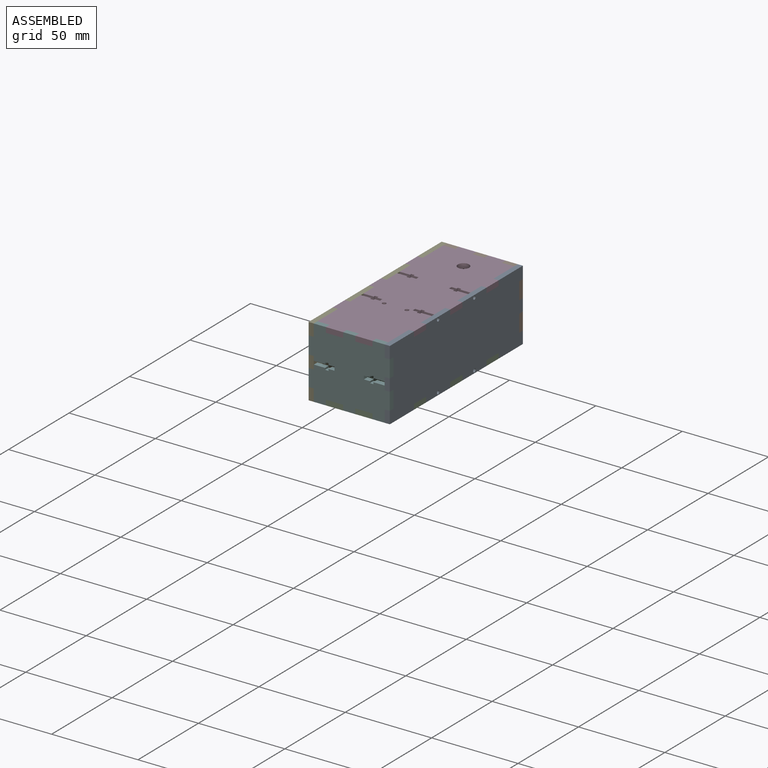
[diagram: assembled view]
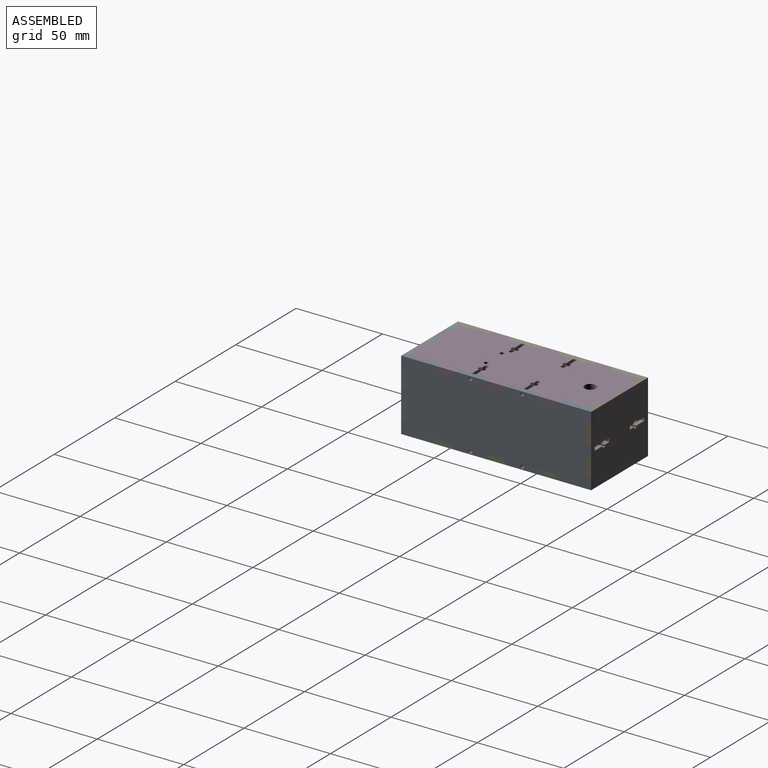
[diagram: assembled view, second angle]
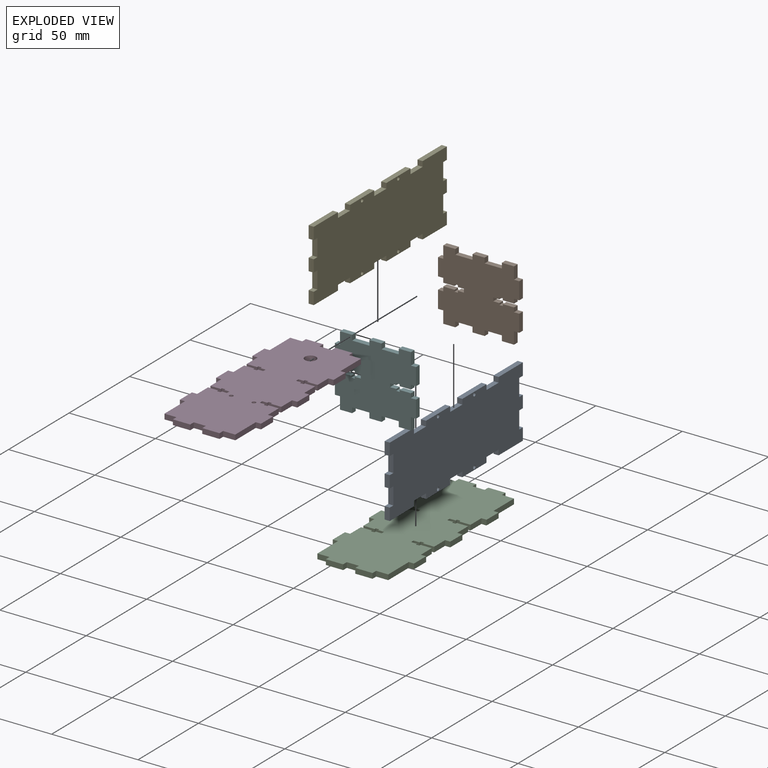
[diagram: exploded view]
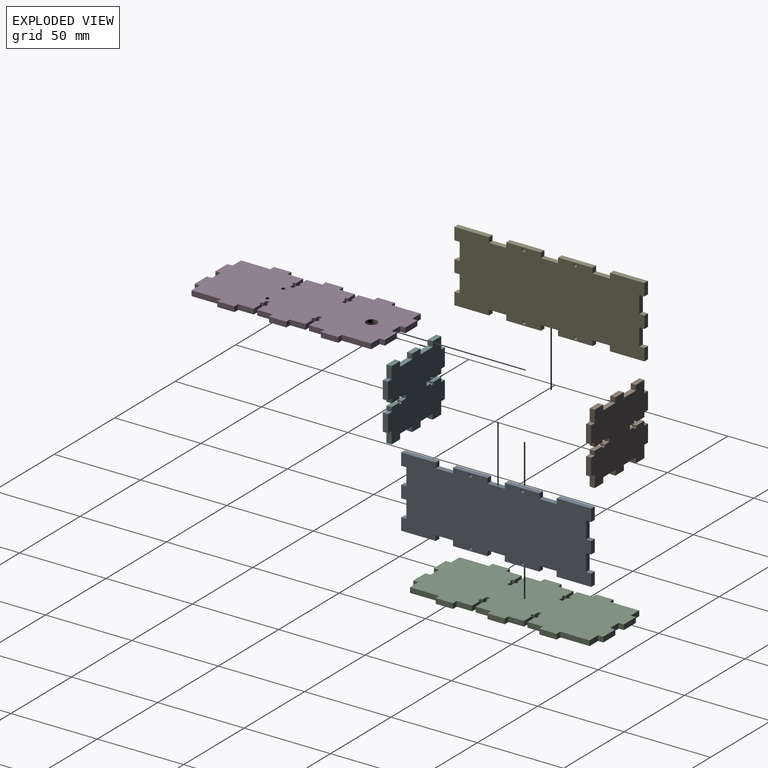
[diagram: exploded view, second angle]
ASSEMBLY  parts=6 mates=5
PART A: 50 faces, bbox 3x110x41 mm
  f0: plane 10x3mm, normal (0,0,-1), area 30mm2, adj f1,f43,f48,f49
  f1: plane 3x3mm, normal (0,-1,0), area 9mm2, adj f0,f2,f48,f49
  f2: plane 20x3mm, normal (0,0,-1), area 60mm2, adj f1,f3,f48,f49
  f3: plane 3x3mm, normal (0,1,0), area 9mm2, adj f2,f4,f48,f49
  f4: plane 10x3mm, normal (0,0,-1), area 30mm2, adj f3,f5,f48,f49
  f5: plane 3x3mm, normal (0,-1,0), area 9mm2, adj f4,f6,f48,f49
  f6: plane 20x3mm, normal (0,0,-1), area 60mm2, adj f5,f7,f48,f49
  f7: plane 3x3mm, normal (0,1,0), area 9mm2, adj f6,f8,f48,f49
  f8: plane 10x3mm, normal (0,0,-1), area 30mm2, adj f7,f9,f48,f49
  f9: plane 3x3mm, normal (0,-1,0), area 9mm2, adj f8,f10,f48,f49
  f10: plane 20x3mm, normal (0,0,-1), area 60mm2, adj f9,f11,f48,f49
  f11: plane 7x3mm, normal (0,1,0), area 21mm2, adj f10,f12,f48,f49
  f12: plane 3x3mm, normal (0,0,1), area 9mm2, adj f11,f13,f48,f49
  f13: plane 10x3mm, normal (0,1,0), area 30mm2, adj f12,f14,f48,f49
  f14: plane 3x3mm, normal (0,0,-1), area 9mm2, adj f13,f15,f48,f49
  f15: plane 7x3mm, normal (0,1,0), area 21mm2, adj f14,f16,f48,f49
  f16: plane 3x3mm, normal (0,0,1), area 9mm2, adj f15,f17,f48,f49
  f17: plane 10x3mm, normal (0,1,0), area 30mm2, adj f16,f18,f48,f49
  f18: plane 3x3mm, normal (0,0,-1), area 9mm2, adj f17,f19,f48,f49
  f19: plane 7x3mm, normal (0,1,0), area 21mm2, adj f18,f20,f48,f49
  f20: plane 20x3mm, normal (0,0,1), area 60mm2, adj f19,f21,f48,f49
  f21: plane 3x3mm, normal (0,-1,0), area 9mm2, adj f20,f22,f48,f49
  f22: plane 10x3mm, normal (0,0,1), area 30mm2, adj f21,f23,f48,f49
  f23: plane 3x3mm, normal (0,1,0), area 9mm2, adj f22,f24,f48,f49
  f24: plane 20x3mm, normal (0,0,1), area 60mm2, adj f23,f25,f48,f49
  f25: plane 3x3mm, normal (0,-1,0), area 9mm2, adj f24,f26,f48,f49
  f26: plane 10x3mm, normal (0,0,1), area 30mm2, adj f25,f27,f48,f49
  f27: plane 3x3mm, normal (0,1,0), area 9mm2, adj f26,f28,f48,f49
  f28: plane 20x3mm, normal (0,0,1), area 60mm2, adj f27,f29,f48,f49
  f29: plane 3x3mm, normal (0,-1,0), area 9mm2, adj f28,f30,f48,f49
  f30: plane 10x3mm, normal (0,0,1), area 30mm2, adj f29,f31,f48,f49
  f31: plane 3x3mm, normal (0,1,0), area 9mm2, adj f30,f32,f48,f49
  f32: plane 20x3mm, normal (0,0,1), area 60mm2, adj f31,f33,f48,f49
  f33: plane 7x3mm, normal (0,-1,0), area 21mm2, adj f32,f34,f48,f49
  f34: plane 3x3mm, normal (0,0,-1), area 9mm2, adj f33,f35,f48,f49
  f35: plane 10x3mm, normal (0,-1,0), area 30mm2, adj f34,f36,f48,f49
  f36: plane 3x3mm, normal (0,0,1), area 9mm2, adj f35,f37,f48,f49
  f37: plane 7x3mm, normal (0,-1,0), area 21mm2, adj f36,f38,f48,f49
  f38: plane 3x3mm, normal (0,0,-1), area 9mm2, adj f37,f39,f48,f49
  f39: plane 10x3mm, normal (0,-1,0), area 30mm2, adj f38,f40,f48,f49
  f40: plane 3x3mm, normal (0,0,1), area 9mm2, adj f39,f41,f48,f49
  f41: plane 7x3mm, normal (0,-1,0), area 21mm2, adj f40,f42,f48,f49
  f42: plane 20x3mm, normal (0,0,-1), area 60mm2, adj f41,f43,f48,f49
  f43: plane 3x3mm, normal (0,1,0), area 9mm2, adj f0,f42,f48,f49
  f44: cylinder r=1mm len=3mm, axis (-1,0,0), area 18.8mm2, adj f48,f49
  f45: cylinder r=1mm len=3mm, axis (-1,0,0), area 18.8mm2, adj f48,f49
  f46: cylinder r=1mm len=3mm, axis (-1,0,0), area 18.8mm2, adj f48,f49
  f47: cylinder r=1mm len=3mm, axis (-1,0,0), area 18.8mm2, adj f48,f49
  f48: plane 110x41mm, normal (1,0,0), area 4197.4mm2, adj f0,f1,f2,f3,f4,f5,f6,f7
  f49: plane 110x41mm, normal (-1,0,0), area 4197.4mm2, adj f0,f1,f2,f3,f4,f5,f6,f7
PART B: 62 faces, bbox 41x3x47 mm
  f0: plane 10x3mm, normal (0,0,-1), area 30mm2, adj f1,f59,f60,f61
  f1: plane 3x3mm, normal (1,0,0), area 9mm2, adj f0,f2,f60,f61
  f2: plane 3x2.5mm, normal (0,0,-1), area 7.5mm2, adj f1,f3,f60,f61
  f3: plane 6.5x3mm, normal (1,0,0), area 19.5mm2, adj f2,f4,f60,f61
  f4: plane 3x1mm, normal (0,0,1), area 3mm2, adj f3,f5,f60,f61
  f5: plane 3x2mm, normal (1,0,0), area 6mm2, adj f4,f6,f60,f61
  f6: plane 3x1mm, normal (0,0,-1), area 3mm2, adj f5,f7,f60,f61
  f7: plane 3.5x3mm, normal (1,0,0), area 10.5mm2, adj f6,f8,f60,f61
  f8: plane 3x2mm, normal (0,0,-1), area 6mm2, adj f7,f9,f60,f61
  f9: plane 3.5x3mm, normal (-1,0,0), area 10.5mm2, adj f8,f10,f60,f61
  f10: plane 3x1mm, normal (0,0,-1), area 3mm2, adj f9,f11,f60,f61
  f11: plane 3x2mm, normal (-1,0,0), area 6mm2, adj f10,f12,f60,f61
  f12: plane 3x1mm, normal (0,0,1), area 3mm2, adj f11,f13,f60,f61
  f13: plane 6.5x3mm, normal (-1,0,0), area 19.5mm2, adj f12,f14,f60,f61
  f14: plane 3x2.5mm, normal (0,0,-1), area 7.5mm2, adj f13,f15,f60,f61
  f15: plane 3x3mm, normal (-1,0,0), area 9mm2, adj f14,f16,f60,f61
  f16: plane 10x3mm, normal (0,0,-1), area 30mm2, adj f15,f17,f60,f61
  f17: plane 3x3mm, normal (1,0,0), area 9mm2, adj f16,f18,f60,f61
  f18: plane 7x3mm, normal (0,0,-1), area 21mm2, adj f17,f19,f60,f61
  f19: plane 7x3mm, normal (1,0,0), area 21mm2, adj f18,f20,f60,f61
  f20: plane 3x3mm, normal (0,0,1), area 9mm2, adj f19,f21,f60,f61
  f21: plane 10x3mm, normal (1,0,0), area 30mm2, adj f20,f22,f60,f61
  f22: plane 3x3mm, normal (0,0,-1), area 9mm2, adj f21,f23,f60,f61
  f23: plane 7x3mm, normal (1,0,0), area 21mm2, adj f22,f24,f60,f61
  f24: plane 3x3mm, normal (0,0,1), area 9mm2, adj f23,f25,f60,f61
  f25: plane 10x3mm, normal (1,0,0), area 30mm2, adj f24,f26,f60,f61
  f26: plane 3x3mm, normal (0,0,-1), area 9mm2, adj f25,f27,f60,f61
  f27: plane 7x3mm, normal (1,0,0), area 21mm2, adj f26,f28,f60,f61
  f28: plane 7x3mm, normal (0,0,1), area 21mm2, adj f27,f29,f60,f61
  f29: plane 3x3mm, normal (1,0,0), area 9mm2, adj f28,f30,f60,f61
  f30: plane 10x3mm, normal (0,0,1), area 30mm2, adj f29,f31,f60,f61
  f31: plane 3x3mm, normal (-1,0,0), area 9mm2, adj f30,f32,f60,f61
  f32: plane 3x2.5mm, normal (0,0,1), area 7.5mm2, adj f31,f33,f60,f61
  f33: plane 6.5x3mm, normal (-1,0,0), area 19.5mm2, adj f32,f34,f60,f61
  f34: plane 3x1mm, normal (0,0,-1), area 3mm2, adj f33,f35,f60,f61
  f35: plane 3x2mm, normal (-1,0,0), area 6mm2, adj f34,f36,f60,f61
  f36: plane 3x1mm, normal (0,0,1), area 3mm2, adj f35,f37,f60,f61
  f37: plane 3.5x3mm, normal (-1,0,0), area 10.5mm2, adj f36,f38,f60,f61
  f38: plane 3x2mm, normal (0,0,1), area 6mm2, adj f37,f39,f60,f61
  f39: plane 3.5x3mm, normal (1,0,0), area 10.5mm2, adj f38,f40,f60,f61
  f40: plane 3x1mm, normal (0,0,1), area 3mm2, adj f39,f41,f60,f61
  f41: plane 3x2mm, normal (1,0,0), area 6mm2, adj f40,f42,f60,f61
  f42: plane 3x1mm, normal (0,0,-1), area 3mm2, adj f41,f43,f60,f61
  f43: plane 6.5x3mm, normal (1,0,0), area 19.5mm2, adj f42,f44,f60,f61
  f44: plane 3x2.5mm, normal (0,0,1), area 7.5mm2, adj f43,f45,f60,f61
  f45: plane 3x3mm, normal (1,0,0), area 9mm2, adj f44,f46,f60,f61
  f46: plane 10x3mm, normal (0,0,1), area 30mm2, adj f45,f47,f60,f61
  f47: plane 3x3mm, normal (-1,0,0), area 9mm2, adj f46,f48,f60,f61
  f48: plane 7x3mm, normal (0,0,1), area 21mm2, adj f47,f49,f60,f61
  f49: plane 7x3mm, normal (-1,0,0), area 21mm2, adj f48,f50,f60,f61
  f50: plane 3x3mm, normal (0,0,-1), area 9mm2, adj f49,f51,f60,f61
  f51: plane 10x3mm, normal (-1,0,0), area 30mm2, adj f50,f52,f60,f61
  f52: plane 3x3mm, normal (0,0,1), area 9mm2, adj f51,f53,f60,f61
  f53: plane 7x3mm, normal (-1,0,0), area 21mm2, adj f52,f54,f60,f61
  f54: plane 3x3mm, normal (0,0,-1), area 9mm2, adj f53,f55,f60,f61
  f55: plane 10x3mm, normal (-1,0,0), area 30mm2, adj f54,f56,f60,f61
  f56: plane 3x3mm, normal (0,0,1), area 9mm2, adj f55,f57,f60,f61
  f57: plane 7x3mm, normal (-1,0,0), area 21mm2, adj f56,f58,f60,f61
  f58: plane 7x3mm, normal (0,0,-1), area 21mm2, adj f57,f59,f60,f61
  f59: plane 3x3mm, normal (-1,0,0), area 9mm2, adj f0,f58,f60,f61
  f60: plane 47x41mm, normal (0,-1,0), area 1625mm2, adj f0,f1,f2,f3,f4,f5,f6,f7
  f61: plane 47x41mm, normal (0,1,0), area 1625mm2, adj f0,f1,f2,f3,f4,f5,f6,f7
PART C: 94 faces, bbox 110x47x3 mm
  f0: plane 3x1mm, normal (0,-1,0), area 3mm2, adj f1,f91,f92,f93
  f1: plane 3.5x3mm, normal (1,0,0), area 10.5mm2, adj f0,f2,f92,f93
  f2: plane 3x2mm, normal (0,-1,0), area 6mm2, adj f1,f3,f92,f93
  f3: plane 3.5x3mm, normal (-1,0,0), area 10.5mm2, adj f2,f4,f92,f93
  f4: plane 3x1mm, normal (0,-1,0), area 3mm2, adj f3,f5,f92,f93
  f5: plane 3x2mm, normal (-1,0,0), area 6mm2, adj f4,f6,f92,f93
  f6: plane 3x1mm, normal (0,1,0), area 3mm2, adj f5,f7,f92,f93
  f7: plane 6.5x3mm, normal (-1,0,0), area 19.5mm2, adj f6,f8,f92,f93
  f8: plane 9x3mm, normal (0,-1,0), area 27mm2, adj f7,f9,f92,f93
  f9: plane 3x3mm, normal (-1,0,0), area 9mm2, adj f8,f10,f92,f93
  f10: plane 10x3mm, normal (0,-1,0), area 30mm2, adj f9,f11,f92,f93
  f11: plane 3x3mm, normal (1,0,0), area 9mm2, adj f10,f12,f92,f93
  f12: plane 9x3mm, normal (0,-1,0), area 27mm2, adj f11,f13,f92,f93
  f13: plane 6.5x3mm, normal (1,0,0), area 19.5mm2, adj f12,f14,f92,f93
  f14: plane 3x1mm, normal (0,1,0), area 3mm2, adj f13,f15,f92,f93
  f15: plane 3x2mm, normal (1,0,0), area 6mm2, adj f14,f16,f92,f93
  f16: plane 3x1mm, normal (0,-1,0), area 3mm2, adj f15,f17,f92,f93
  f17: plane 3.5x3mm, normal (1,0,0), area 10.5mm2, adj f16,f18,f92,f93
  f18: plane 3x2mm, normal (0,-1,0), area 6mm2, adj f17,f19,f92,f93
  f19: plane 3.5x3mm, normal (-1,0,0), area 10.5mm2, adj f18,f20,f92,f93
  f20: plane 3x1mm, normal (0,-1,0), area 3mm2, adj f19,f21,f92,f93
  f21: plane 3x2mm, normal (-1,0,0), area 6mm2, adj f20,f22,f92,f93
  f22: plane 3x1mm, normal (0,1,0), area 3mm2, adj f21,f23,f92,f93
  f23: plane 6.5x3mm, normal (-1,0,0), area 19.5mm2, adj f22,f24,f92,f93
  f24: plane 9x3mm, normal (0,-1,0), area 27mm2, adj f23,f25,f92,f93
  f25: plane 3x3mm, normal (-1,0,0), area 9mm2, adj f24,f26,f92,f93
  f26: plane 10x3mm, normal (0,-1,0), area 30mm2, adj f25,f27,f92,f93
  f27: plane 3x3mm, normal (1,0,0), area 9mm2, adj f26,f28,f92,f93
  f28: plane 17x3mm, normal (0,-1,0), area 51mm2, adj f27,f29,f92,f93
  f29: plane 7x3mm, normal (1,0,0), area 21mm2, adj f28,f30,f92,f93
  f30: plane 3x3mm, normal (0,-1,0), area 9mm2, adj f29,f31,f92,f93
  f31: plane 10x3mm, normal (1,0,0), area 30mm2, adj f30,f32,f92,f93
  f32: plane 3x3mm, normal (0,1,0), area 9mm2, adj f31,f33,f92,f93
  f33: plane 7x3mm, normal (1,0,0), area 21mm2, adj f32,f34,f92,f93
  f34: plane 3x3mm, normal (0,-1,0), area 9mm2, adj f33,f35,f92,f93
  f35: plane 10x3mm, normal (1,0,0), area 30mm2, adj f34,f36,f92,f93
  f36: plane 3x3mm, normal (0,1,0), area 9mm2, adj f35,f37,f92,f93
  f37: plane 7x3mm, normal (1,0,0), area 21mm2, adj f36,f38,f92,f93
  f38: plane 17x3mm, normal (0,1,0), area 51mm2, adj f37,f39,f92,f93
  f39: plane 3x3mm, normal (1,0,0), area 9mm2, adj f38,f40,f92,f93
  f40: plane 10x3mm, normal (0,1,0), area 30mm2, adj f39,f41,f92,f93
  f41: plane 3x3mm, normal (-1,0,0), area 9mm2, adj f40,f42,f92,f93
  f42: plane 9x3mm, normal (0,1,0), area 27mm2, adj f41,f43,f92,f93
  f43: plane 6.5x3mm, normal (-1,0,0), area 19.5mm2, adj f42,f44,f92,f93
  f44: plane 3x1mm, normal (0,-1,0), area 3mm2, adj f43,f45,f92,f93
  f45: plane 3x2mm, normal (-1,0,0), area 6mm2, adj f44,f46,f92,f93
  f46: plane 3x1mm, normal (0,1,0), area 3mm2, adj f45,f47,f92,f93
  f47: plane 3.5x3mm, normal (-1,0,0), area 10.5mm2, adj f46,f48,f92,f93
  f48: plane 3x2mm, normal (0,1,0), area 6mm2, adj f47,f49,f92,f93
  f49: plane 3.5x3mm, normal (1,0,0), area 10.5mm2, adj f48,f50,f92,f93
  f50: plane 3x1mm, normal (0,1,0), area 3mm2, adj f49,f51,f92,f93
  f51: plane 3x2mm, normal (1,0,0), area 6mm2, adj f50,f52,f92,f93
  f52: plane 3x1mm, normal (0,-1,0), area 3mm2, adj f51,f53,f92,f93
  f53: plane 6.5x3mm, normal (1,0,0), area 19.5mm2, adj f52,f54,f92,f93
  f54: plane 9x3mm, normal (0,1,0), area 27mm2, adj f53,f55,f92,f93
  f55: plane 3x3mm, normal (1,0,0), area 9mm2, adj f54,f56,f92,f93
  f56: plane 10x3mm, normal (0,1,0), area 30mm2, adj f55,f57,f92,f93
  f57: plane 3x3mm, normal (-1,0,0), area 9mm2, adj f56,f58,f92,f93
  f58: plane 9x3mm, normal (0,1,0), area 27mm2, adj f57,f59,f92,f93
  f59: plane 6.5x3mm, normal (-1,0,0), area 19.5mm2, adj f58,f60,f92,f93
  f60: plane 3x1mm, normal (0,-1,0), area 3mm2, adj f59,f61,f92,f93
  f61: plane 3x2mm, normal (-1,0,0), area 6mm2, adj f60,f62,f92,f93
  f62: plane 3x1mm, normal (0,1,0), area 3mm2, adj f61,f63,f92,f93
  f63: plane 3.5x3mm, normal (-1,0,0), area 10.5mm2, adj f62,f64,f92,f93
  f64: plane 3x2mm, normal (0,1,0), area 6mm2, adj f63,f65,f92,f93
  f65: plane 3.5x3mm, normal (1,0,0), area 10.5mm2, adj f64,f66,f92,f93
  f66: plane 3x1mm, normal (0,1,0), area 3mm2, adj f65,f67,f92,f93
  f67: plane 3x2mm, normal (1,0,0), area 6mm2, adj f66,f68,f92,f93
  f68: plane 3x1mm, normal (0,-1,0), area 3mm2, adj f67,f69,f92,f93
  f69: plane 6.5x3mm, normal (1,0,0), area 19.5mm2, adj f68,f70,f92,f93
  f70: plane 9x3mm, normal (0,1,0), area 27mm2, adj f69,f71,f92,f93
  f71: plane 3x3mm, normal (1,0,0), area 9mm2, adj f70,f72,f92,f93
  f72: plane 10x3mm, normal (0,1,0), area 30mm2, adj f71,f73,f92,f93
  f73: plane 3x3mm, normal (-1,0,0), area 9mm2, adj f72,f74,f92,f93
  f74: plane 17x3mm, normal (0,1,0), area 51mm2, adj f73,f75,f92,f93
  f75: plane 7x3mm, normal (-1,0,0), area 21mm2, adj f74,f76,f92,f93
  f76: plane 3x3mm, normal (0,1,0), area 9mm2, adj f75,f77,f92,f93
  f77: plane 10x3mm, normal (-1,0,0), area 30mm2, adj f76,f78,f92,f93
  f78: plane 3x3mm, normal (0,-1,0), area 9mm2, adj f77,f79,f92,f93
  f79: plane 7x3mm, normal (-1,0,0), area 21mm2, adj f78,f80,f92,f93
  f80: plane 3x3mm, normal (0,1,0), area 9mm2, adj f79,f81,f92,f93
  f81: plane 10x3mm, normal (-1,0,0), area 30mm2, adj f80,f82,f92,f93
  f82: plane 3x3mm, normal (0,-1,0), area 9mm2, adj f81,f83,f92,f93
  f83: plane 7x3mm, normal (-1,0,0), area 21mm2, adj f82,f84,f92,f93
  f84: plane 17x3mm, normal (0,-1,0), area 51mm2, adj f83,f85,f92,f93
  f85: plane 3x3mm, normal (-1,0,0), area 9mm2, adj f84,f86,f92,f93
  f86: plane 10x3mm, normal (0,-1,0), area 30mm2, adj f85,f87,f92,f93
  f87: plane 3x3mm, normal (1,0,0), area 9mm2, adj f86,f88,f92,f93
  f88: plane 9x3mm, normal (0,-1,0), area 27mm2, adj f87,f89,f92,f93
  f89: plane 6.5x3mm, normal (1,0,0), area 19.5mm2, adj f88,f90,f92,f93
  f90: plane 3x1mm, normal (0,1,0), area 3mm2, adj f89,f91,f92,f93
  f91: plane 3x2mm, normal (1,0,0), area 6mm2, adj f0,f90,f92,f93
  f92: plane 110x47mm, normal (0,0,1), area 4452mm2, adj f0,f1,f2,f3,f4,f5,f6,f7
  f93: plane 110x47mm, normal (0,0,-1), area 4452mm2, adj f0,f1,f2,f3,f4,f5,f6,f7
PART D: 97 faces, bbox 110x47x3 mm
  f0: plane 7x3mm, normal (-1,0,0), area 21mm2, adj f1,f94,f95,f96
  f1: plane 3x3mm, normal (0,1,0), area 9mm2, adj f0,f2,f95,f96
  f2: plane 10x3mm, normal (-1,0,0), area 30mm2, adj f1,f3,f95,f96
  f3: plane 3x3mm, normal (0,-1,0), area 9mm2, adj f2,f4,f95,f96
  f4: plane 7x3mm, normal (-1,0,0), area 21mm2, adj f3,f5,f95,f96
  f5: plane 17x3mm, normal (0,-1,0), area 51mm2, adj f4,f6,f95,f96
  f6: plane 3x3mm, normal (-1,0,0), area 9mm2, adj f5,f7,f95,f96
  f7: plane 10x3mm, normal (0,-1,0), area 30mm2, adj f6,f8,f95,f96
  f8: plane 3x3mm, normal (1,0,0), area 9mm2, adj f7,f9,f95,f96
  f9: plane 9x3mm, normal (0,-1,0), area 27mm2, adj f8,f10,f95,f96
  f10: plane 6x3mm, normal (1,0,0), area 18mm2, adj f9,f11,f95,f96
  f11: plane 3x1mm, normal (0,1,0), area 3mm2, adj f10,f12,f95,f96
  f12: plane 3x2mm, normal (1,0,0), area 6mm2, adj f11,f13,f95,f96
  f13: plane 3x1mm, normal (0,-1,0), area 3mm2, adj f12,f14,f95,f96
  f14: plane 3x3mm, normal (1,0,0), area 9mm2, adj f13,f15,f95,f96
  f15: plane 3x2mm, normal (0,-1,0), area 6mm2, adj f14,f16,f95,f96
  f16: plane 3x3mm, normal (-1,0,0), area 9mm2, adj f15,f17,f95,f96
  f17: plane 3x1mm, normal (0,-1,0), area 3mm2, adj f16,f18,f95,f96
  f18: plane 3x2mm, normal (-1,0,0), area 6mm2, adj f17,f19,f95,f96
  f19: plane 3x1mm, normal (0,1,0), area 3mm2, adj f18,f20,f95,f96
  f20: plane 6x3mm, normal (-1,0,0), area 18mm2, adj f19,f21,f95,f96
  f21: plane 9x3mm, normal (0,-1,0), area 27mm2, adj f20,f22,f95,f96
  f22: plane 3x3mm, normal (-1,0,0), area 9mm2, adj f21,f23,f95,f96
  f23: plane 10x3mm, normal (0,-1,0), area 30mm2, adj f22,f24,f95,f96
  f24: plane 3x3mm, normal (1,0,0), area 9mm2, adj f23,f25,f95,f96
  f25: plane 9x3mm, normal (0,-1,0), area 27mm2, adj f24,f26,f95,f96
  f26: plane 6x3mm, normal (1,0,0), area 18mm2, adj f25,f27,f95,f96
  f27: plane 3x1mm, normal (0,1,0), area 3mm2, adj f26,f28,f95,f96
  f28: plane 3x2mm, normal (1,0,0), area 6mm2, adj f27,f29,f95,f96
  f29: plane 3x1mm, normal (0,-1,0), area 3mm2, adj f28,f30,f95,f96
  f30: plane 3x3mm, normal (1,0,0), area 9mm2, adj f29,f31,f95,f96
  f31: plane 3x2mm, normal (0,-1,0), area 6mm2, adj f30,f32,f95,f96
  f32: plane 3x3mm, normal (-1,0,0), area 9mm2, adj f31,f33,f95,f96
  f33: plane 3x1mm, normal (0,-1,0), area 3mm2, adj f32,f34,f95,f96
  f34: plane 3x2mm, normal (-1,0,0), area 6mm2, adj f33,f35,f95,f96
  f35: plane 3x1mm, normal (0,1,0), area 3mm2, adj f34,f36,f95,f96
  f36: plane 6x3mm, normal (-1,0,0), area 18mm2, adj f35,f37,f95,f96
  f37: plane 9x3mm, normal (0,-1,0), area 27mm2, adj f36,f38,f95,f96
  f38: plane 3x3mm, normal (-1,0,0), area 9mm2, adj f37,f39,f95,f96
  f39: plane 10x3mm, normal (0,-1,0), area 30mm2, adj f38,f40,f95,f96
  f40: plane 3x3mm, normal (1,0,0), area 9mm2, adj f39,f41,f95,f96
  f41: plane 17x3mm, normal (0,-1,0), area 51mm2, adj f40,f42,f95,f96
  f42: plane 7x3mm, normal (1,0,0), area 21mm2, adj f41,f43,f95,f96
  f43: plane 3x3mm, normal (0,-1,0), area 9mm2, adj f42,f44,f95,f96
  f44: plane 10x3mm, normal (1,0,0), area 30mm2, adj f43,f45,f95,f96
  f45: plane 3x3mm, normal (0,1,0), area 9mm2, adj f44,f46,f95,f96
  f46: plane 7x3mm, normal (1,0,0), area 21mm2, adj f45,f47,f95,f96
  f47: plane 3x3mm, normal (0,-1,0), area 9mm2, adj f46,f48,f95,f96
  f48: plane 10x3mm, normal (1,0,0), area 30mm2, adj f47,f49,f95,f96
  f49: plane 3x3mm, normal (0,1,0), area 9mm2, adj f48,f50,f95,f96
  f50: plane 7x3mm, normal (1,0,0), area 21mm2, adj f49,f51,f95,f96
  f51: plane 17x3mm, normal (0,1,0), area 51mm2, adj f50,f52,f95,f96
  f52: plane 3x3mm, normal (1,0,0), area 9mm2, adj f51,f53,f95,f96
  f53: plane 10x3mm, normal (0,1,0), area 30mm2, adj f52,f54,f95,f96
  f54: plane 3x3mm, normal (-1,0,0), area 9mm2, adj f53,f55,f95,f96
  f55: plane 9x3mm, normal (0,1,0), area 27mm2, adj f54,f56,f95,f96
  f56: plane 6x3mm, normal (-1,0,0), area 18mm2, adj f55,f57,f95,f96
  f57: plane 3x1mm, normal (0,-1,0), area 3mm2, adj f56,f58,f95,f96
  f58: plane 3x2mm, normal (-1,0,0), area 6mm2, adj f57,f59,f95,f96
  f59: plane 3x1mm, normal (0,1,0), area 3mm2, adj f58,f60,f95,f96
  f60: plane 3x3mm, normal (-1,0,0), area 9mm2, adj f59,f61,f95,f96
  f61: plane 3x2mm, normal (0,1,0), area 6mm2, adj f60,f62,f95,f96
  f62: plane 3x3mm, normal (1,0,0), area 9mm2, adj f61,f63,f95,f96
  f63: plane 3x1mm, normal (0,1,0), area 3mm2, adj f62,f64,f95,f96
  f64: plane 3x2mm, normal (1,0,0), area 6mm2, adj f63,f65,f95,f96
  f65: plane 3x1mm, normal (0,-1,0), area 3mm2, adj f64,f66,f95,f96
  f66: plane 6x3mm, normal (1,0,0), area 18mm2, adj f65,f67,f95,f96
  f67: plane 9x3mm, normal (0,1,0), area 27mm2, adj f66,f68,f95,f96
  f68: plane 3x3mm, normal (1,0,0), area 9mm2, adj f67,f69,f95,f96
  f69: plane 10x3mm, normal (0,1,0), area 30mm2, adj f68,f70,f95,f96
  f70: plane 3x3mm, normal (-1,0,0), area 9mm2, adj f69,f71,f95,f96
  f71: plane 9x3mm, normal (0,1,0), area 27mm2, adj f70,f72,f95,f96
  f72: plane 6x3mm, normal (-1,0,0), area 18mm2, adj f71,f73,f95,f96
  f73: plane 3x1mm, normal (0,-1,0), area 3mm2, adj f72,f74,f95,f96
  f74: plane 3x2mm, normal (-1,0,0), area 6mm2, adj f73,f75,f95,f96
  f75: plane 3x1mm, normal (0,1,0), area 3mm2, adj f74,f76,f95,f96
  f76: plane 3x3mm, normal (-1,0,0), area 9mm2, adj f75,f77,f95,f96
  f77: plane 3x2mm, normal (0,1,0), area 6mm2, adj f76,f78,f95,f96
  f78: plane 3x3mm, normal (1,0,0), area 9mm2, adj f77,f79,f95,f96
  f79: plane 3x1mm, normal (0,1,0), area 3mm2, adj f78,f80,f95,f96
  f80: plane 3x2mm, normal (1,0,0), area 6mm2, adj f79,f81,f95,f96
  f81: plane 3x1mm, normal (0,-1,0), area 3mm2, adj f80,f82,f95,f96
  f82: plane 6x3mm, normal (1,0,0), area 18mm2, adj f81,f83,f95,f96
  f83: plane 9x3mm, normal (0,1,0), area 27mm2, adj f82,f84,f95,f96
  f84: plane 3x3mm, normal (1,0,0), area 9mm2, adj f83,f85,f95,f96
  f85: plane 10x3mm, normal (0,1,0), area 30mm2, adj f84,f86,f95,f96
  f86: plane 3x3mm, normal (-1,0,0), area 9mm2, adj f85,f87,f95,f96
  f87: plane 17x3mm, normal (0,1,0), area 51mm2, adj f86,f88,f95,f96
  f88: plane 7x3mm, normal (-1,0,0), area 21mm2, adj f87,f89,f95,f96
  f89: plane 3x3mm, normal (0,1,0), area 9mm2, adj f88,f90,f95,f96
  f90: plane 10x3mm, normal (-1,0,0), area 30mm2, adj f89,f94,f95,f96
  f91: cylinder r=3.25mm len=6.5mm, axis (0,0,-1), area 61.3mm2, adj f95,f96
  f92: cylinder r=1.12mm len=3mm, axis (0,0,-1), area 21.2mm2, adj f95,f96
  f93: cylinder r=1.12mm len=3mm, axis (0,0,-1), area 21.2mm2, adj f95,f96
  f94: plane 3x3mm, normal (0,-1,0), area 9mm2, adj f0,f90,f95,f96
  f95: plane 110x47mm, normal (0,0,1), area 4418.9mm2, adj f0,f1,f2,f3,f4,f5,f6,f7
  f96: plane 110x47mm, normal (0,0,-1), area 4418.9mm2, adj f0,f1,f2,f3,f4,f5,f6,f7
PART E: same geometry as A
PART F: same geometry as B
PLACE A t=(-16.02,36.82,-6.71)mm
PLACE B rot(axis=(0,-1,0),90deg) t=(-16.02,36.82,34.29)mm
PLACE C rot(axis=(0,0,1),90deg) t=(-16.02,33.82,-6.71)mm
PLACE D rot(axis=(0,0,1),90deg) t=(-16.02,33.82,31.29)mm
PLACE E t=(-60.02,36.82,-6.71)mm fixed
PLACE F rot(axis=(0,1,0),90deg) t=(-57.02,-70.18,-6.71)mm
MATE fastened B.f29 <-> E.f18  axis (0,0,1) through (-58.52,35.32,27.29)mm
MATE fastened D.f40 <-> A.f21  axis (0,1,0) through (-14.52,16.82,32.79)mm
MATE fastened C.f30 <-> B.f56  axis (1,0,0) through (-23.02,35.32,-5.21)mm
MATE fastened F.f59 <-> E.f34  axis (0,0,1) through (-58.52,-71.68,27.29)mm
MATE fastened B.f17 <-> A.f18  axis (0,0,1) through (-14.52,35.32,27.29)mm
